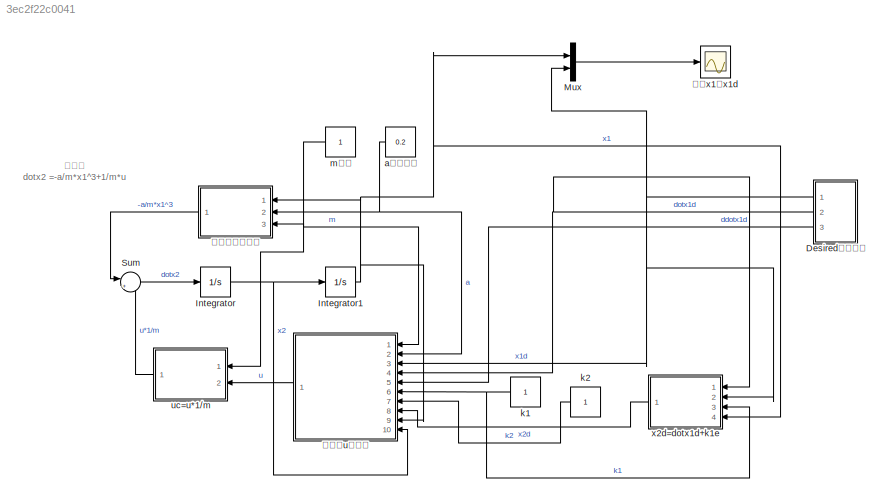
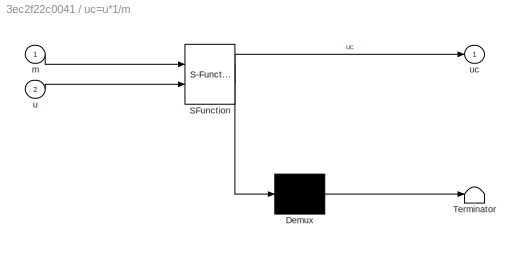
MODEL slx_3ec2f22c0041
KIND model
CONFIG AbsTol = auto
CONFIG EnableMultiTasking = off
CONFIG FixedStep = auto
CONFIG MaxStep = auto
CONFIG MinStep = auto
CONFIG RelTol = 1e-3
CONFIG SampleTimeConstraint = Unconstrained
CONFIG SolverName = VariableStepAuto
CONFIG StartTime = 0.0
CONFIG StopTime = 60
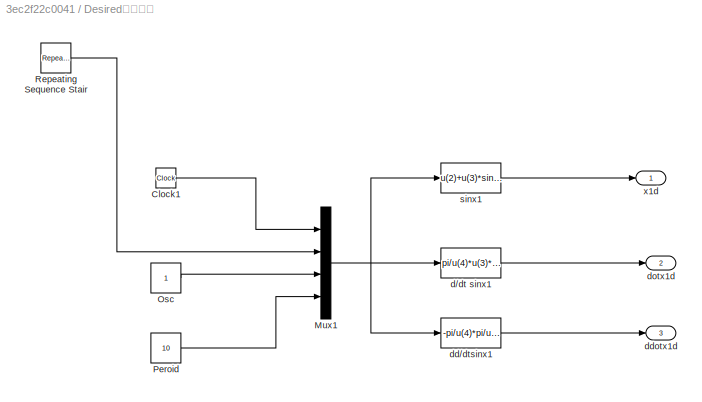
BLOCK [SubSystem] Desired设定轨迹
  Ports = [0, 3]
  RequestExecContextInheritance = off
BLOCK [Clock] Desired设定轨迹/Clock1
  Decimation = 100
BLOCK [Mux] Desired设定轨迹/Mux1
  DisplayOption = bar
  Ports = [4, 1]
BLOCK [Constant] Desired设定轨迹/Osc
BLOCK [Constant] Desired设定轨迹/Peroid
  Value = 10
BLOCK [Reference] Desired设定轨迹/Repeating Sequence Stair  REF=simulink/Sources/Repeating
Sequence
Stair
  Ports = [0, 1]
  SourceBlock = simulink/Sources/Repeating\nSequence\nStair
  SourceProductBaseCode = SL
  SourceType = Repeating Sequence Stair
BLOCK [Fcn] Desired设定轨迹/d//dt sinx1
  Expr = pi/u(4)*u(3)*cos(u(1)*pi/u(4))
BLOCK [Fcn] Desired设定轨迹/dd//dtsinx1
  Expr = -pi/u(4)*pi/u(4)*u(3)*sin(u(1)*pi/u(4))
BLOCK [Outport] Desired设定轨迹/ddotx1d
  Port = 3
BLOCK [Outport] Desired设定轨迹/dotx1d
  Port = 2
BLOCK [Fcn] Desired设定轨迹/sinx1
  Expr = u(2)+u(3)*sin(u(1)*pi/u(4))
BLOCK [Outport] Desired设定轨迹/x1d
BLOCK [Integrator] Integrator
  Ports = [1, 1]
BLOCK [Integrator] Integrator1
  Ports = [1, 1]
BLOCK [Mux] Mux
  DisplayOption = bar
  Inputs = 2
  Ports = [2, 1]
BLOCK [Sum] Sum
  Inputs = |++
  Ports = [2, 1]
BLOCK [Constant] a弹性系数
  NameLocation = top
  Value = 0.2
BLOCK [Constant] k1
BLOCK [Constant] k2
  NameLocation = top
BLOCK [Constant] m质量
  NameLocation = top
BLOCK [SubSystem] uc=u*1//m
  ErrorFcn = Stateflow.Translate.translate
  PermitHierarchicalResolution = ExplicitOnly
  Ports = [2, 1]
  RequestExecContextInheritance = off
  SFBlockType = MATLAB Function
  TreatAsAtomicUnit = on
BLOCK [Demux] uc=u*1//m/ Demux 
  Outputs = 1
  Ports = [1, 1]
BLOCK [S-Function] uc=u*1//m/ SFunction 
  EnableBusSupport = on
  FunctionName = sf_sfun
  PortCounts = [2 2]
  Ports = [2, 2]
  SFcnIsStateOwnerBlock = off
  SFunctionDeploymentMode = off
  Tag = Stateflow S-Function 1
BLOCK [Terminator] uc=u*1//m/ Terminator 
BLOCK [Inport] uc=u*1//m/m
BLOCK [Inport] uc=u*1//m/u
  Port = 2
BLOCK [Outport] uc=u*1//m/uc
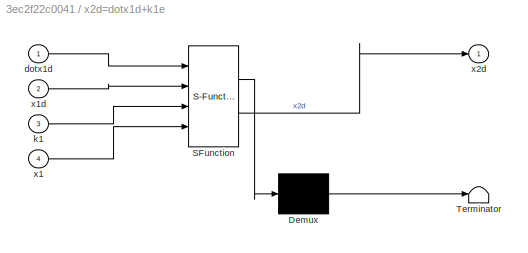
BLOCK [SubSystem] x2d=dotx1d+k1e
  ErrorFcn = Stateflow.Translate.translate
  PermitHierarchicalResolution = ExplicitOnly
  Ports = [4, 1]
  RequestExecContextInheritance = off
  SFBlockType = MATLAB Function
  TreatAsAtomicUnit = on
BLOCK [Demux] x2d=dotx1d+k1e/ Demux 
  Outputs = 1
  Ports = [1, 1]
BLOCK [S-Function] x2d=dotx1d+k1e/ SFunction 
  EnableBusSupport = on
  FunctionName = sf_sfun
  PortCounts = [4 2]
  Ports = [4, 2]
  SFcnIsStateOwnerBlock = off
  SFunctionDeploymentMode = off
  Tag = Stateflow S-Function 4
BLOCK [Terminator] x2d=dotx1d+k1e/ Terminator 
BLOCK [Inport] x2d=dotx1d+k1e/dotx1d
BLOCK [Inport] x2d=dotx1d+k1e/k1
  Port = 3
BLOCK [Inport] x2d=dotx1d+k1e/x1
  Port = 4
BLOCK [Inport] x2d=dotx1d+k1e/x1d
  Port = 2
BLOCK [Outport] x2d=dotx1d+k1e/x2d
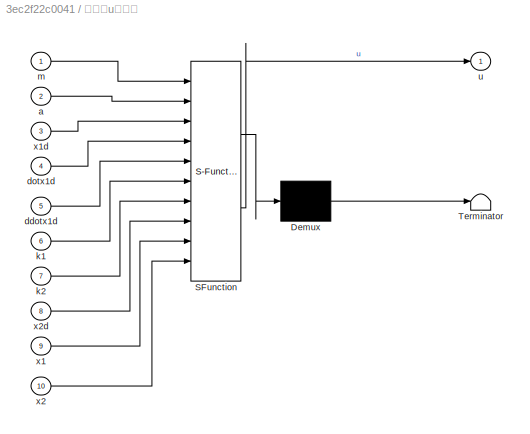
BLOCK [SubSystem] 控制器u表达式
  ErrorFcn = Stateflow.Translate.translate
  PermitHierarchicalResolution = ExplicitOnly
  Ports = [10, 1]
  RequestExecContextInheritance = off
  SFBlockType = MATLAB Function
  TreatAsAtomicUnit = on
BLOCK [Demux] 控制器u表达式/ Demux 
  Outputs = 1
  Ports = [1, 1]
BLOCK [S-Function] 控制器u表达式/ SFunction 
  EnableBusSupport = on
  FunctionName = sf_sfun
  PortCounts = [10 2]
  Ports = [10, 2]
  SFcnIsStateOwnerBlock = off
  SFunctionDeploymentMode = off
  Tag = Stateflow S-Function 3
BLOCK [Terminator] 控制器u表达式/ Terminator 
BLOCK [Inport] 控制器u表达式/a
  Port = 2
BLOCK [Inport] 控制器u表达式/ddotx1d
  Port = 5
BLOCK [Inport] 控制器u表达式/dotx1d
  Port = 4
BLOCK [Inport] 控制器u表达式/k1
  Port = 6
BLOCK [Inport] 控制器u表达式/k2
  Port = 7
BLOCK [Inport] 控制器u表达式/m
BLOCK [Outport] 控制器u表达式/u
BLOCK [Inport] 控制器u表达式/x1
  Port = 9
BLOCK [Inport] 控制器u表达式/x1d
  Port = 3
BLOCK [Inport] 控制器u表达式/x2
  Port = 10
BLOCK [Inport] 控制器u表达式/x2d
  Port = 8
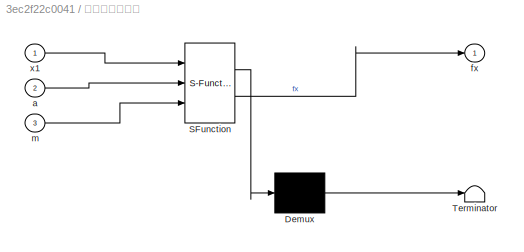
BLOCK [SubSystem] 系统函数前部分
  ErrorFcn = Stateflow.Translate.translate
  NameLocation = top
  PermitHierarchicalResolution = ExplicitOnly
  Ports = [3, 1]
  RequestExecContextInheritance = off
  SFBlockType = MATLAB Function
  TreatAsAtomicUnit = on
BLOCK [Demux] 系统函数前部分/ Demux 
  Outputs = 1
  Ports = [1, 1]
BLOCK [S-Function] 系统函数前部分/ SFunction 
  EnableBusSupport = on
  FunctionName = sf_sfun
  PortCounts = [3 2]
  Ports = [3, 2]
  SFcnIsStateOwnerBlock = off
  SFunctionDeploymentMode = off
  Tag = Stateflow S-Function 2
BLOCK [Terminator] 系统函数前部分/ Terminator 
BLOCK [Inport] 系统函数前部分/a
  Port = 2
BLOCK [Outport] 系统函数前部分/fx
BLOCK [Inport] 系统函数前部分/m
  Port = 3
BLOCK [Inport] 系统函数前部分/x1
BLOCK [Scope] 观察x1和x1d
  Floating = off
  NumInputPorts = 1
  Ports = [1]
  ScopeSpecificationString = Simulink.scopes.TimeScopeBlockCfg('CurrentConfiguration', extmgr.ConfigurationSet(extmgr.Configuration('Core','General UI',true),extmgr.Configuration('Core','Source UI',true),extmgr.Configuration('Sources','WiredSimulink',true),extmgr.Configuration('Visuals','Time Domain',true,'SerializedDisplays',{struct('MinYLimReal','-0.25059','MaxYLimReal','2.25527','YLabelReal','','MinYLimMag','0.00000','MaxY...<+1358ch>
ANNOTATION (root): 系统： dotx2 =-a/m*x1^3+1/m*u
LINE Desired设定轨迹/Clock1:1 -> Desired设定轨迹/Mux1:1
NET Desired设定轨迹/Mux1:1 -> Desired设定轨迹/d//dt sinx1:1, Desired设定轨迹/dd//dtsinx1:1, Desired设定轨迹/sinx1:1
LINE Desired设定轨迹/Osc:1 -> Desired设定轨迹/Mux1:3
LINE Desired设定轨迹/Peroid:1 -> Desired设定轨迹/Mux1:4
LINE Desired设定轨迹/Repeating Sequence Stair:1 -> Desired设定轨迹/Mux1:2
LINE Desired设定轨迹/d//dt sinx1:1 -> Desired设定轨迹/dotx1d:1
LINE Desired设定轨迹/dd//dtsinx1:1 -> Desired设定轨迹/ddotx1d:1
LINE Desired设定轨迹/sinx1:1 -> Desired设定轨迹/x1d:1
NET Desired设定轨迹:1 -> Mux:2, x2d=dotx1d+k1e:2, 控制器u表达式:3
NET Desired设定轨迹:2 -> x2d=dotx1d+k1e:1, 控制器u表达式:4
LINE Desired设定轨迹:3 -> 控制器u表达式:5
NET Integrator1:1 -> Mux:1, x2d=dotx1d+k1e:4, 控制器u表达式:9, 系统函数前部分:1
NET Integrator:1 -> Integrator1:1, 控制器u表达式:10
LINE Mux:1 -> 观察x1和x1d:1
LINE Sum:1 -> Integrator:1
NET a弹性系数:1 -> 控制器u表达式:2, 系统函数前部分:2
NET k1:1 -> x2d=dotx1d+k1e:3, 控制器u表达式:6
LINE k2:1 -> 控制器u表达式:7
NET m质量:1 -> uc=u*1//m:1, 控制器u表达式:1, 系统函数前部分:3
LINE uc=u*1//m:1 -> Sum:2
LINE x2d=dotx1d+k1e:1 -> 控制器u表达式:8
LINE 控制器u表达式:1 -> uc=u*1//m:2
LINE 系统函数前部分:1 -> Sum:1
note: NET lines group one-source signal fan-out (src -> all destinations, sorted); 1:1 wires keep LINE
CHART uc=u*1//m states=1 transitions=1
  STATE_LABEL 'eML_blk_kernel()'
  STATE_LABEL 'SCRIPT:\nfunction uc = fcn(m,u)\n\n\nuc=1\\m*u;\n'
CHART 系统函数前部分 states=1 transitions=1
  STATE_LABEL 'eML_blk_kernel()'
  STATE_LABEL 'SCRIPT:\nfunction fx = fcn(x1,a,m)\n\n\nfx = -a/m*x1*x1*x1;\n'
CHART 控制器u表达式 states=1 transitions=1
  STATE_LABEL 'eML_blk_kernel()'
  STATE_LABEL 'SCRIPT:\nfunction u = fcn(m,a,x1d,dotx1d,ddotx1d,k1,k2,x2d,x1,x2)\n\nt1=m*(x1d-x1)\nt2=m*ddotx1d\nt3=m*k1*(dotx1d-x2)\nt4=a*x1*x1*x1\nt5=m*k2*(x2d-x2)\n\nu=t1+t2+t3+t4+t5\n'
CHART x2d=dotx1d+k1e states=1 transitions=1
  STATE_LABEL 'eML_blk_kernel()'
  STATE_LABEL 'SCRIPT:\nfunction x2d = fcn(dotx1d,x1d,k1,x1)\n\n\nx2d=dotx1d+k1*(x1d-x1);\n'
CHART  states=0 transitions=0
CHART  states=0 transitions=0
CHART  states=0 transitions=0
CHART  states=0 transitions=0
